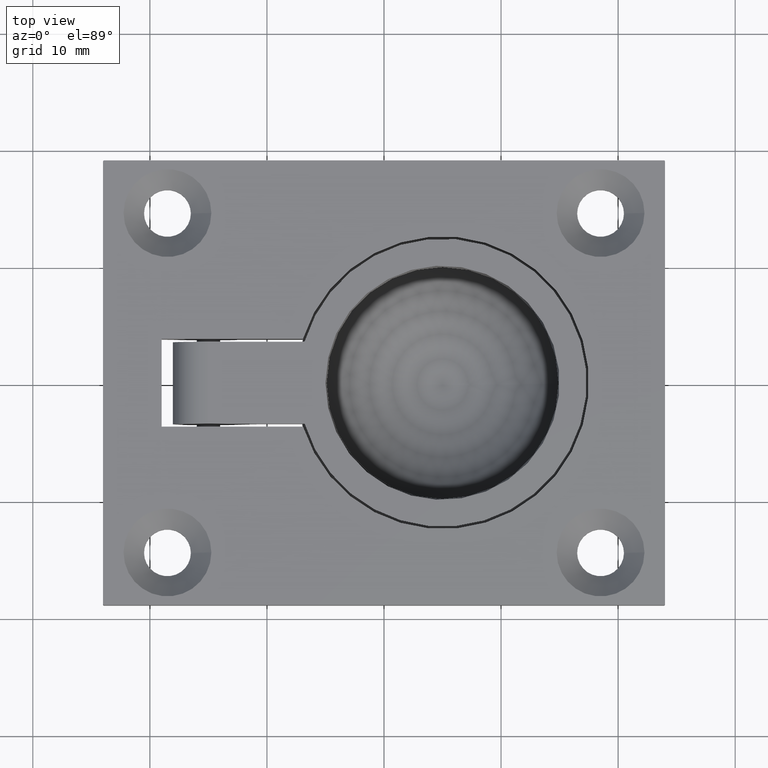
[diagram: clean part render]
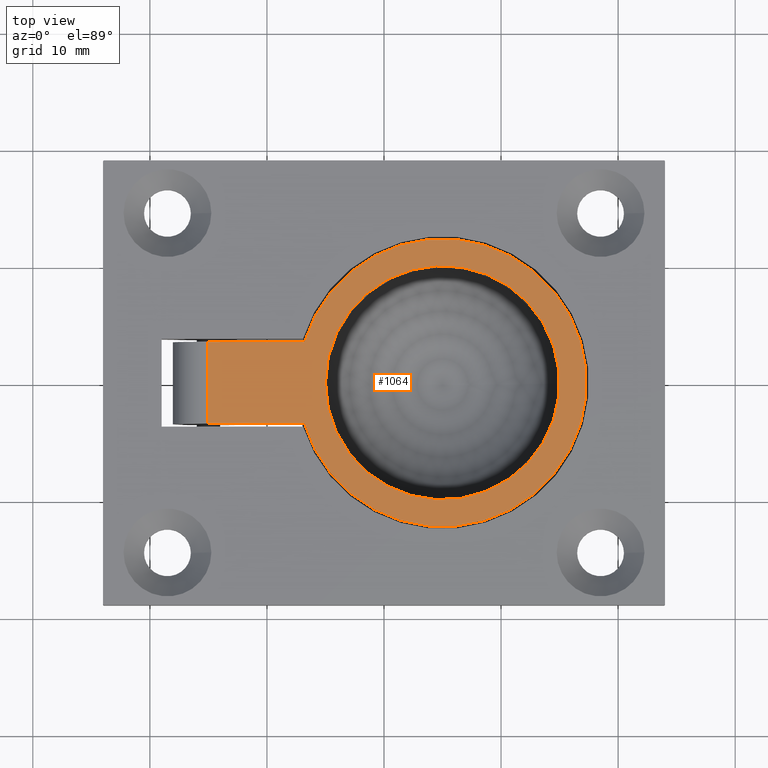
[diagram: same view with one face highlighted and labeled with its STEP entity id]
A machine part, top view. The second image highlights one B-rep face of the part: STEP entity #1064.
In plain terms, the highlighted planar face has unit normal (0, 0, -1).
Its self-contained STEP definition (entity closure, byte-faithful):
#73=FACE_BOUND('',#245,.T.);
#95=PLANE('',#1186);
#155=FACE_OUTER_BOUND('',#244,.T.);
#244=EDGE_LOOP('',(#939,#940,#941,#942));
#245=EDGE_LOOP('',(#943));
#318=LINE('',#1937,#386);
#320=LINE('',#1943,#388);
#321=LINE('',#1946,#389);
#386=VECTOR('',#1482,7.);
#388=VECTOR('',#1488,8.25051239710274);
#389=VECTOR('',#1491,8.25051239710274);
#448=CIRCLE('',#1187,12.3);
#449=CIRCLE('',#1188,10.);
#541=VERTEX_POINT('',#1934);
#542=VERTEX_POINT('',#1936);
#544=VERTEX_POINT('',#1942);
#545=VERTEX_POINT('',#1944);
#546=VERTEX_POINT('',#1947);
#677=EDGE_CURVE('',#541,#542,#318,.T.);
#680=EDGE_CURVE('',#544,#541,#320,.T.);
#681=EDGE_CURVE('',#545,#544,#448,.T.);
#682=EDGE_CURVE('',#542,#545,#321,.T.);
#683=EDGE_CURVE('',#546,#546,#449,.T.);
#939=ORIENTED_EDGE('',*,*,#677,.F.);
#940=ORIENTED_EDGE('',*,*,#680,.F.);
#941=ORIENTED_EDGE('',*,*,#681,.F.);
#942=ORIENTED_EDGE('',*,*,#682,.F.);
#943=ORIENTED_EDGE('',*,*,#683,.T.);
#1064=ADVANCED_FACE('',(#155,#73),#95,.F.);
#1186=AXIS2_PLACEMENT_3D('',#1941,#1486,#1487);
#1187=AXIS2_PLACEMENT_3D('',#1945,#1489,#1490);
#1188=AXIS2_PLACEMENT_3D('',#1948,#1492,#1493);
#1482=DIRECTION('',(0.,1.,0.));
#1486=DIRECTION('center_axis',(0.,0.,-1.));
#1487=DIRECTION('ref_axis',(-1.,0.,0.));
#1488=DIRECTION('',(-1.,0.,0.));
#1489=DIRECTION('center_axis',(0.,0.,-1.));
#1490=DIRECTION('ref_axis',(-1.,0.,0.));
#1491=DIRECTION('',(1.,0.,0.));
#1492=DIRECTION('center_axis',(0.,0.,-1.));
#1493=DIRECTION('ref_axis',(-1.,0.,0.));
#1934=CARTESIAN_POINT('',(-15.0420347754897,-3.5,3.));
#1936=CARTESIAN_POINT('',(-15.0420347754897,3.5,3.));
#1937=CARTESIAN_POINT('',(-15.0420347754897,0.,3.));
#1941=CARTESIAN_POINT('Origin',(5.,0.,3.));
#1942=CARTESIAN_POINT('',(-6.79152237838694,-3.5,3.));
#1943=CARTESIAN_POINT('',(-19.,-3.5,3.));
#1944=CARTESIAN_POINT('',(-6.79152237838694,3.5,3.));
#1945=CARTESIAN_POINT('Origin',(5.,0.,3.));
#1946=CARTESIAN_POINT('',(-19.,3.5,3.));
#1947=CARTESIAN_POINT('',(-4.99999999999999,0.,3.));
#1948=CARTESIAN_POINT('Origin',(5.00000000000001,0.,3.));